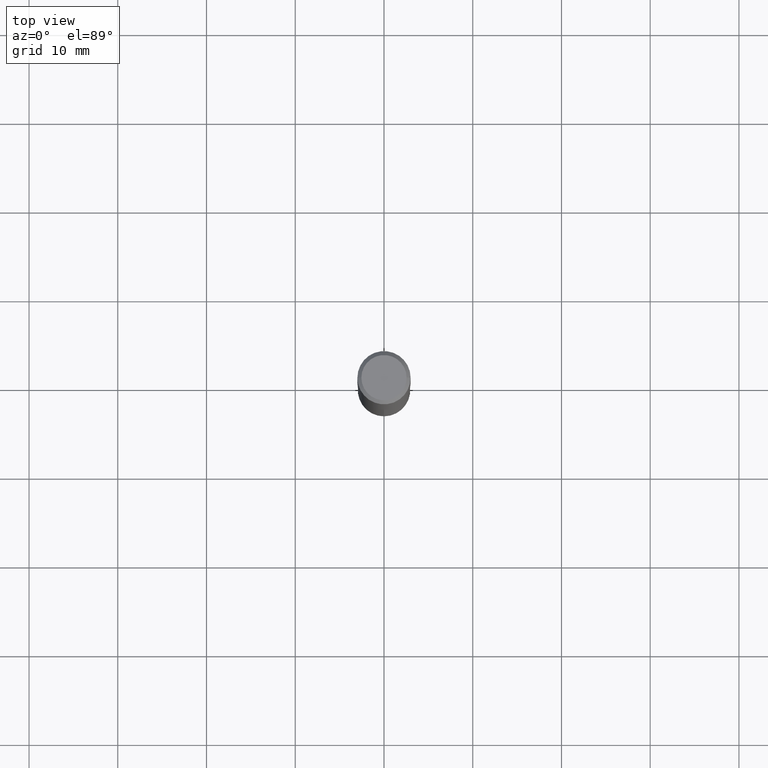
[diagram: clean part render]
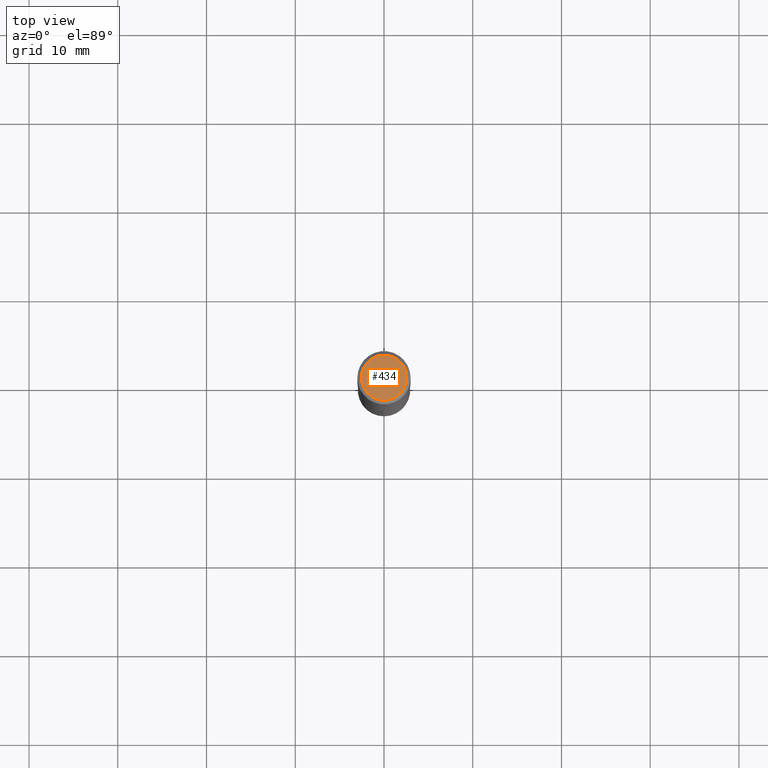
[diagram: same view with one face highlighted and labeled with its STEP entity id]
A machine part, top view. The second image highlights one B-rep face of the part: STEP entity #434.
In plain terms, the highlighted planar face has unit normal (0, -0, -1).
Its self-contained STEP definition (entity closure, byte-faithful):
#5 = DIRECTION ( 'NONE',  ( 1.000000000000000000, -6.982962677686266711E-15, 4.875668750515085695E-29 ) ) ;
#6 = AXIS2_PLACEMENT_3D ( 'NONE', #385, #87, #178 ) ;
#9 = CARTESIAN_POINT ( 'NONE',  ( 2.505516853152066359E-46, -3.577214035530481610E-32, -1.024554820251665005E-17 ) ) ;
#15 = VERTEX_POINT ( 'NONE', #93 ) ;
#16 = PLANE ( 'NONE',  #294 ) ;
#18 = ORIENTED_EDGE ( 'NONE', *, *, #205, .T. ) ;
#48 = VERTEX_POINT ( 'NONE', #256 ) ;
#62 = ORIENTED_EDGE ( 'NONE', *, *, #287, .T. ) ;
#87 = DIRECTION ( 'NONE',  ( -2.445468806185136597E-29, 3.491481338843145583E-15, 1.000000000000000000 ) ) ;
#93 = CARTESIAN_POINT ( 'NONE',  ( -0.1003850000000000159, 7.319105043583386689E-16, -2.049109640503831060E-17 ) ) ;
#178 = DIRECTION ( 'NONE',  ( 1.000000000000000000, -6.982962677686266711E-15, 4.875668750515085695E-29 ) ) ;
#202 = CIRCLE ( 'NONE', #317, 0.1003850000000000159 ) ;
#205 = EDGE_CURVE ( 'NONE', #15, #48, #202, .T. ) ;
#224 = CIRCLE ( 'NONE', #6, 0.1003850000000000159 ) ;
#256 = CARTESIAN_POINT ( 'NONE',  ( 0.1003850000000000159, -7.803837484803599345E-16, -2.049109640502812012E-17 ) ) ;
#287 = EDGE_CURVE ( 'NONE', #48, #15, #224, .T. ) ;
#294 = AXIS2_PLACEMENT_3D ( 'NONE', #9, #464, #311 ) ;
#302 = CARTESIAN_POINT ( 'NONE',  ( 5.011033706304132718E-46, -7.154428071060963220E-32, -2.049109640503330010E-17 ) ) ;
#306 = FACE_OUTER_BOUND ( 'NONE', #391, .T. ) ;
#311 = DIRECTION ( 'NONE',  ( -1.000000000000000000, 6.982962677686265922E-15, -4.876176775795935793E-29 ) ) ;
#317 = AXIS2_PLACEMENT_3D ( 'NONE', #302, #459, #5 ) ;
#385 = CARTESIAN_POINT ( 'NONE',  ( 5.011033706304132718E-46, -7.154428071060963220E-32, -2.049109640503330010E-17 ) ) ;
#391 = EDGE_LOOP ( 'NONE', ( #18, #62 ) ) ;
#434 = ADVANCED_FACE ( 'NONE', ( #306 ), #16, .F. ) ;
#459 = DIRECTION ( 'NONE',  ( -2.445468806185136597E-29, 3.491481338843145583E-15, 1.000000000000000000 ) ) ;
#464 = DIRECTION ( 'NONE',  ( 2.438088387897960049E-29, -3.491481338843145188E-15, -1.000000000000000000 ) ) ;